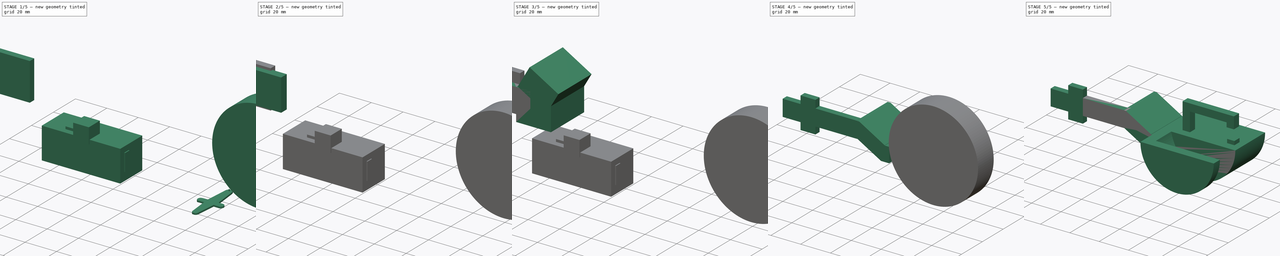
[diagram: build sequence overview — one tinted view per stage of 5, left to right]
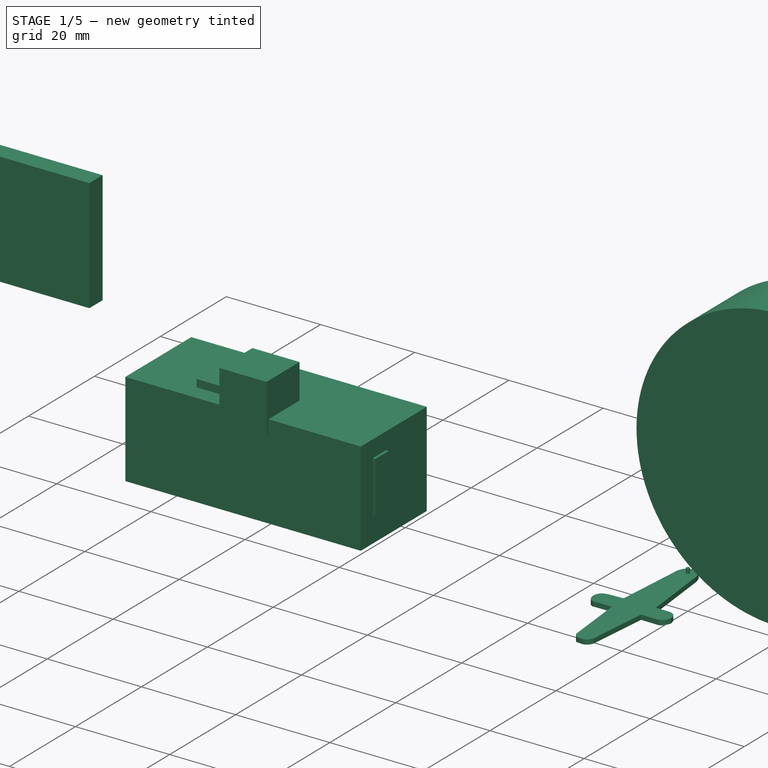
[diagram: stage 1 of 5 — iso view after this stage's code; geometry added in this stage tinted green]
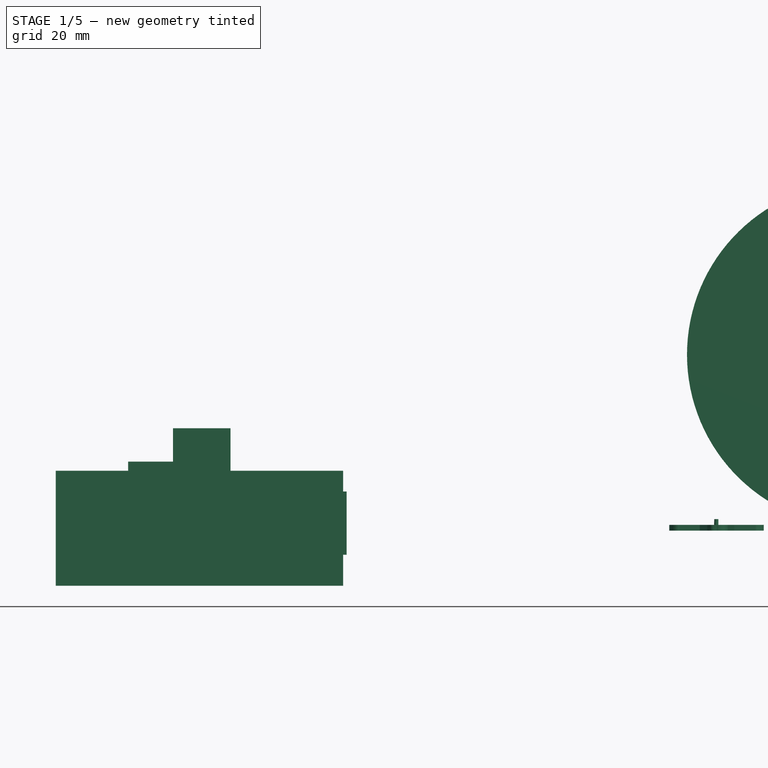
[diagram: stage 1 of 5 — front view after this stage's code; geometry added in this stage tinted green]
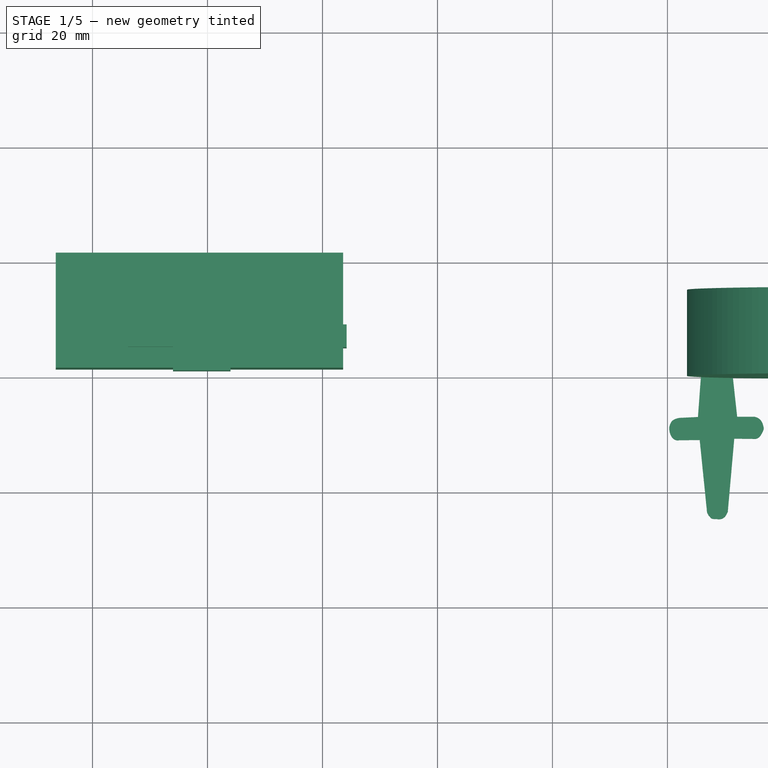
[diagram: stage 1 of 5 — top view after this stage's code; geometry added in this stage tinted green]
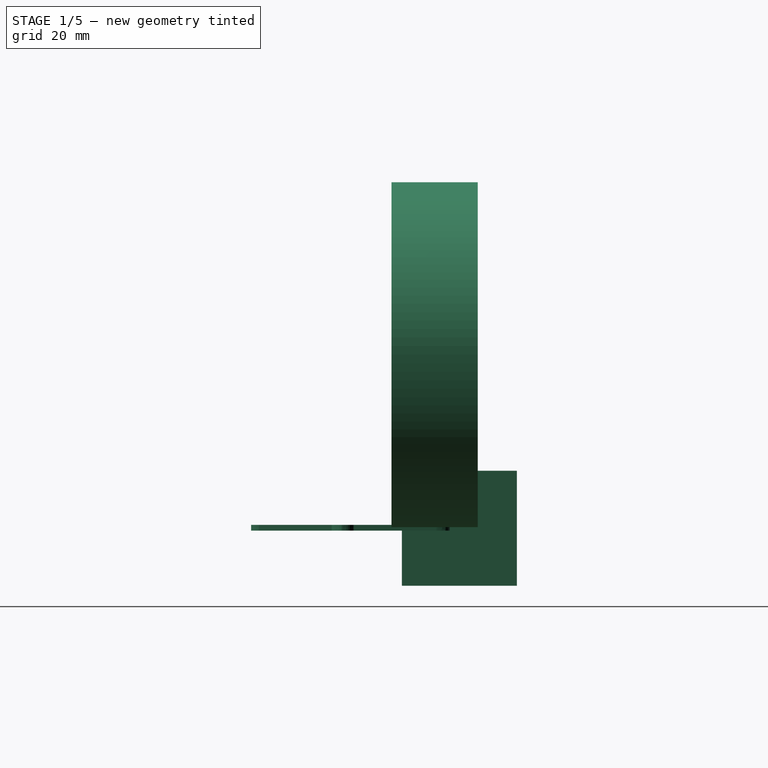
[diagram: stage 1 of 5 — right view after this stage's code; geometry added in this stage tinted green]
FCSTD DOCUMENT  (FreeCAD 0.20R29177 +426 (Git))
Label: pieza_mejorada
License: Creative Commons Attribution-ShareAlike
LicenseURL: http://creativecommons.org/licenses/by-sa/4.0/
objects: Part::Box×16, Part::Cut×14, Part::MultiFuse×6, Part::Extrusion×5, Part::Feature×3, Sketcher::SketchObject×2, Part::Fuse×2, Part::Cylinder×2
note: 50 computed .brp shape members not serialized (recipe doc carries the construction recipe); baked Part::Feature solids carry a one-line shape summary decoded from their .brp

FEATURE [Part::Feature] circle1180
  Placement = pos=(80.8508,-10.0656,0) rot=(0,0,1;0rad)
  shape: bbox 0.8152 x 0.9368 x 1.995e-06 mm, 0 faces, 0 solids (baked)
FEATURE [Part::Extrusion] Extrude026
  Base = -> circle1180
  Dir = (0,0,1)
  DirMode = 2
  FaceMakerClass = Part::FaceMakerBullseye
  LengthFwd = 2
  LengthRev = 0
  Placement = pos=(22.5,0,0) rot=(0,0,1;0rad)
  Solid = true
  Symmetric = false
FEATURE [Part::Feature] path287
  shape: bbox 16.5 x 34.62 x 2e-07 mm, 0 faces, 0 solids (baked)
FEATURE [Part::Extrusion] Extrude025
  Base = -> path287
  Dir = (0,0,1)
  DirMode = 0
  FaceMakerClass = Part::FaceMakerBullseye
  LengthFwd = 1
  LengthRev = 0
  Solid = true
  Symmetric = false
FEATURE [Part::Box] Box043  label="Cubo043"
  AttacherType = Attacher::AttachEngine3D
  Height = 24
  Length = 43
  Placement = pos=(-82,-11.5,17.5) rot=(0,0,1;0rad)
  Width = 4
FEATURE [Part::Box] Box057  label="Cubo057"
  AttacherType = Attacher::AttachEngine3D
  Height = 20
  Length = 50
  Placement = pos=(-26.4,-18.6,-9.6) rot=(0,0,1;0rad)
  Width = 20
FEATURE [Part::Box] Box058  label="Cubo058"
  AttacherType = Attacher::AttachEngine3D
  Height = 11
  Length = 50
  Placement = pos=(-25.8,-15,-4.2) rot=(0,0,1;0rad)
  Width = 4
FEATURE [Part::Box] Box059  label="Cubo059"
  AttacherType = Attacher::AttachEngine3D
  Height = 10
  Length = 10
  Placement = pos=(-6,-19.2,7.8) rot=(0,0,1;0rad)
  Width = 10
FEATURE [Part::Box] Box060  label="Cubo060"
  AttacherType = Attacher::AttachEngine3D
  Height = 21
  Length = 10
  Placement = pos=(-13.8,-15,-9) rot=(0,0,1;0rad)
  Width = 4
FEATURE [Part::MultiFuse] Fusion030
  Shapes = -> [Box060,Box058]
FEATURE [Part::Cylinder] Cylinder002  label="Cilindro002"
  Angle = 360
  AttacherType = Attacher::AttachEngine3D
  FirstAngle = 0
  Height = 15
  Placement = pos=(113.4,-5.4,30.6) rot=(1,0,0;1.5708rad)
  Radius = 30
  SecondAngle = 0
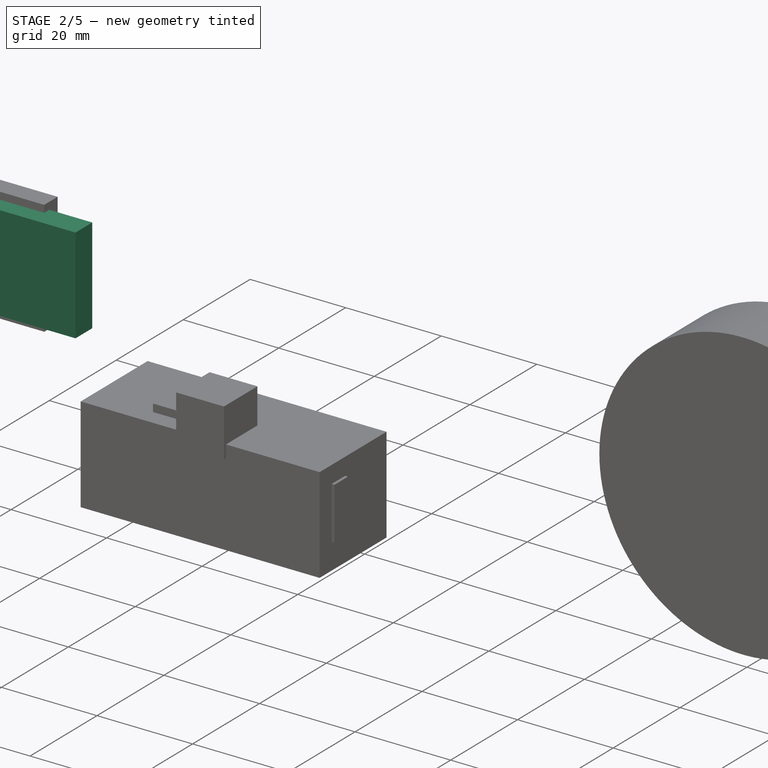
[diagram: stage 2 of 5 — iso view after this stage's code; geometry added in this stage tinted green]
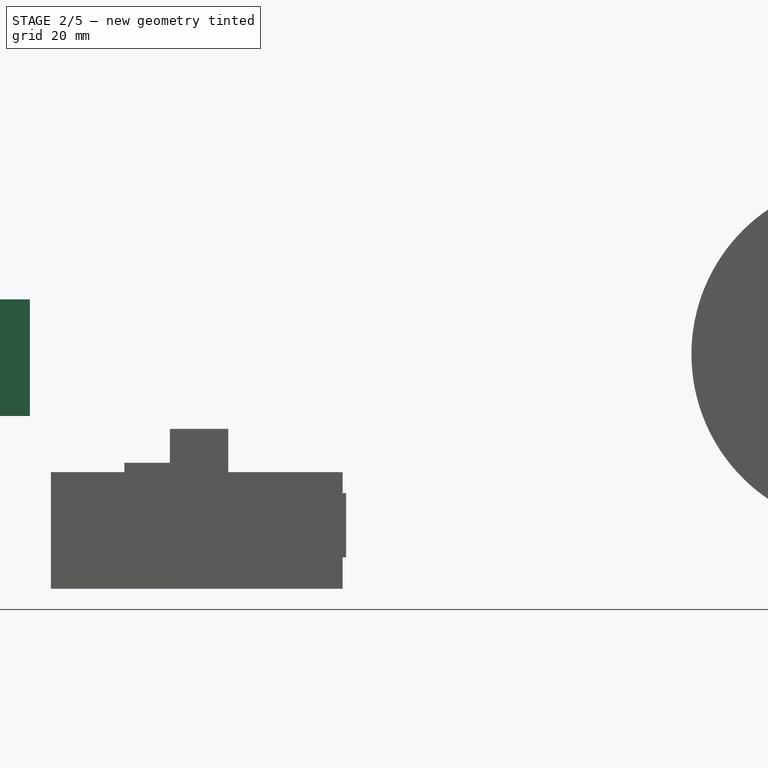
[diagram: stage 2 of 5 — front view after this stage's code; geometry added in this stage tinted green]
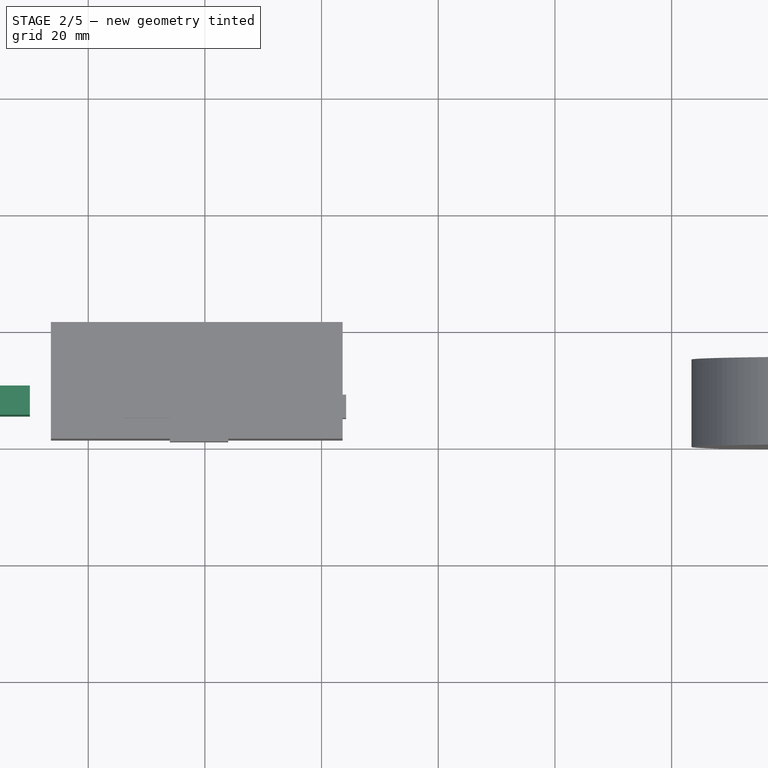
[diagram: stage 2 of 5 — top view after this stage's code; geometry added in this stage tinted green]
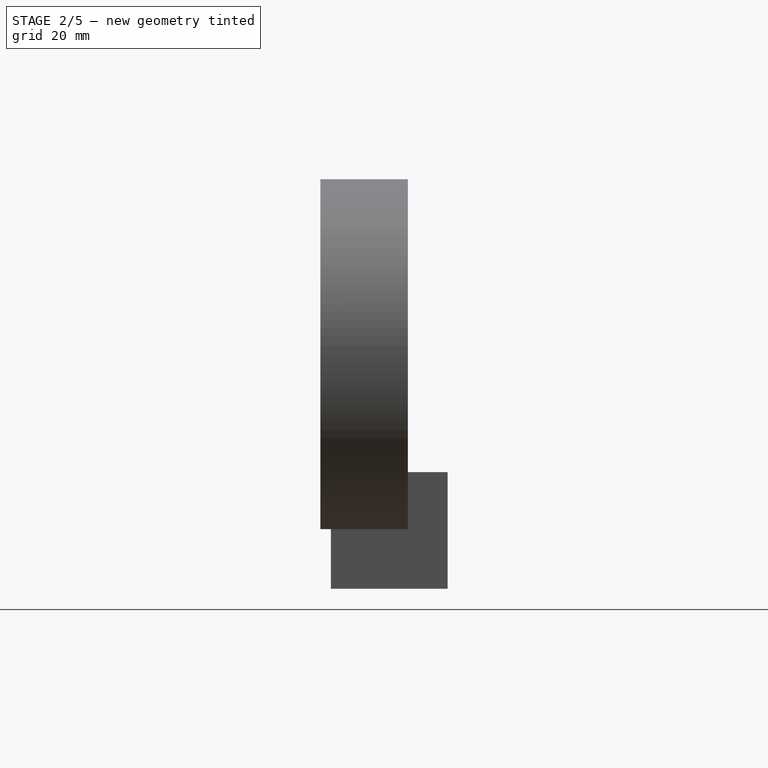
[diagram: stage 2 of 5 — right view after this stage's code; geometry added in this stage tinted green]
FEATURE [Part::Box] Box034  label="Cubo034"
  AttacherType = Attacher::AttachEngine3D
  Height = 30
  Length = 30
  Placement = pos=(-44,-10,19) rot=(0,0,1;0rad)
  Width = 30
FEATURE [Part::Box] Box035  label="Cubo035"
  AttacherType = Attacher::AttachEngine3D
  Height = 10
  Length = 15
  Placement = pos=(-82,-17,15) rot=(0,0,1;0rad)
  Width = 10
FEATURE [Sketcher::SketchObject] Sketch015
  FullyConstrained = true
  MapMode = 2
  sketch-geometry (6):
    g0: LineSegment StartX=0 StartY=0 StartZ=0 EndX=0 EndY=-5 EndZ=0
    g1: LineSegment StartX=0 StartY=-5 StartZ=0 EndX=50 EndY=-5 EndZ=0
    g2: LineSegment StartX=50 StartY=-5 StartZ=0 EndX=50 EndY=15 EndZ=0
    g3: LineSegment StartX=50 StartY=15 StartZ=0 EndX=45 EndY=15 EndZ=0
    g4: LineSegment StartX=45 StartY=15 StartZ=0 EndX=45 EndY=0 EndZ=0
    g5: LineSegment StartX=45 StartY=0 StartZ=0 EndX=0 EndY=0 EndZ=0
  constraints (17):
    c: Coincident(g-1,g0)
    c: PointOnObject(g0,g-2)
    c: Coincident(g0,g1)
    c: Horizontal(g1)
    c: Coincident(g1,g2)
    c: Vertical(g2)
    c: Coincident(g2,g3)
    c: Horizontal(g3)
    c: Coincident(g3,g4)
    c: PointOnObject(g4,g-1)
    c: Vertical(g4)
    c: Coincident(g4,g5)
    c: Coincident(g5,g0)
    c: Distance(g1) = 50
    c: Distance(g0) = 5
    c: Distance(g3) = 5
    c: Distance(g4) = 15
FEATURE [Part::Extrusion] Extrude028
  Base = -> Sketch015
  Dir = (0,0,1)
  DirMode = 2
  FaceMakerClass = Part::FaceMakerBullseye
  LengthFwd = 20
  LengthRev = 0
  Solid = true
  Symmetric = false
FEATURE [Part::Feature] circle1179
  Placement = pos=(80.8508,-13.1887,0) rot=(0,0,1;0rad)
  shape: bbox 0.8152 x 0.9368 x 1.995e-06 mm, 0 faces, 0 solids (baked)
FEATURE [Part::Extrusion] Extrude027
  Base = -> circle1179
  Dir = (0,0,1)
  DirMode = 2
  FaceMakerClass = Part::FaceMakerBullseye
  LengthFwd = 2
  LengthRev = 0
  Placement = pos=(22.5,0,0) rot=(0,0,1;0rad)
  Solid = true
  Symmetric = false
FEATURE [Part::Fuse] Fusion020
  Base = -> Extrude025
  Tool = -> Extrude026
FEATURE [Part::Fuse] Fusion021
  Base = -> Fusion020
  Placement = pos=(46,2.9e-14,98) rot=(0.57735,0.57735,-0.57735;2.0944rad)
  Tool = -> Extrude027
FEATURE [Part::Cut] Cut042  label="agarre006"
  Base = -> Extrude028
  Placement = pos=(-80,-10,20) rot=(0,0,1;0rad)
  Tool = -> Fusion021
FEATURE [Part::Cut] Cut043
  Base = -> Cut042
  Tool = -> Box034
FEATURE [Part::Cut] Cut044
  Base = -> Cut043
  Tool = -> Box035
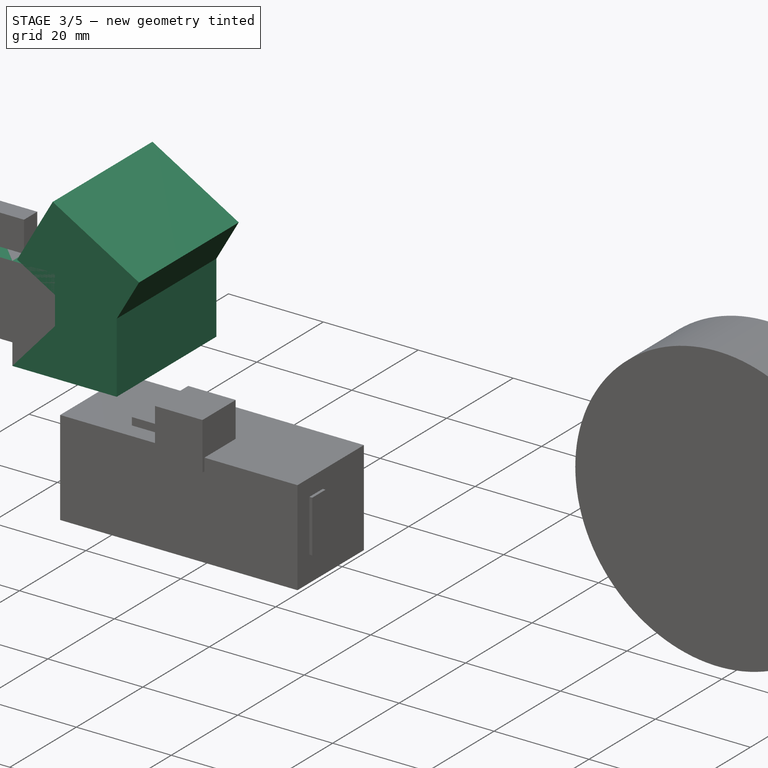
[diagram: stage 3 of 5 — iso view after this stage's code; geometry added in this stage tinted green]
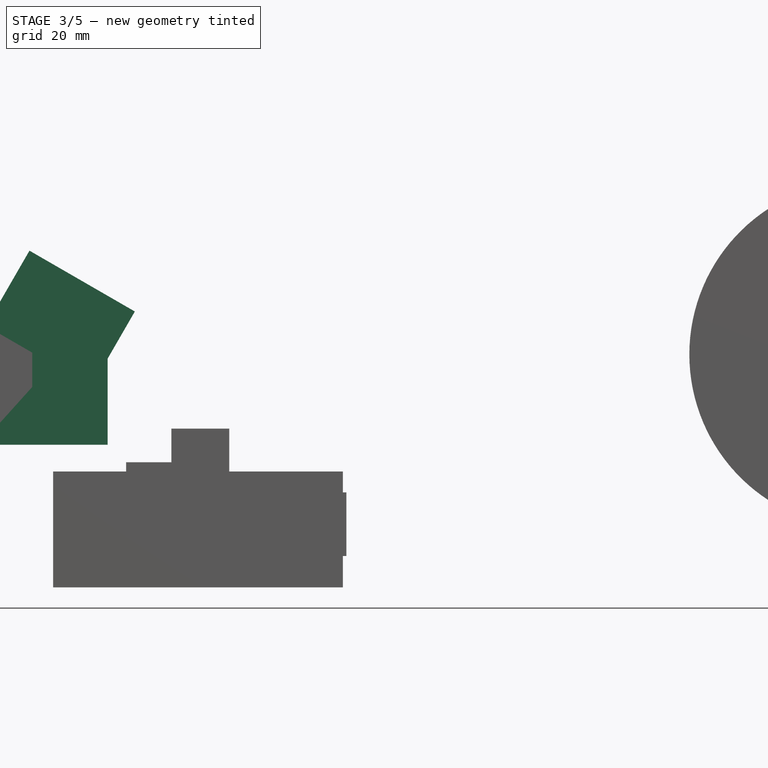
[diagram: stage 3 of 5 — front view after this stage's code; geometry added in this stage tinted green]
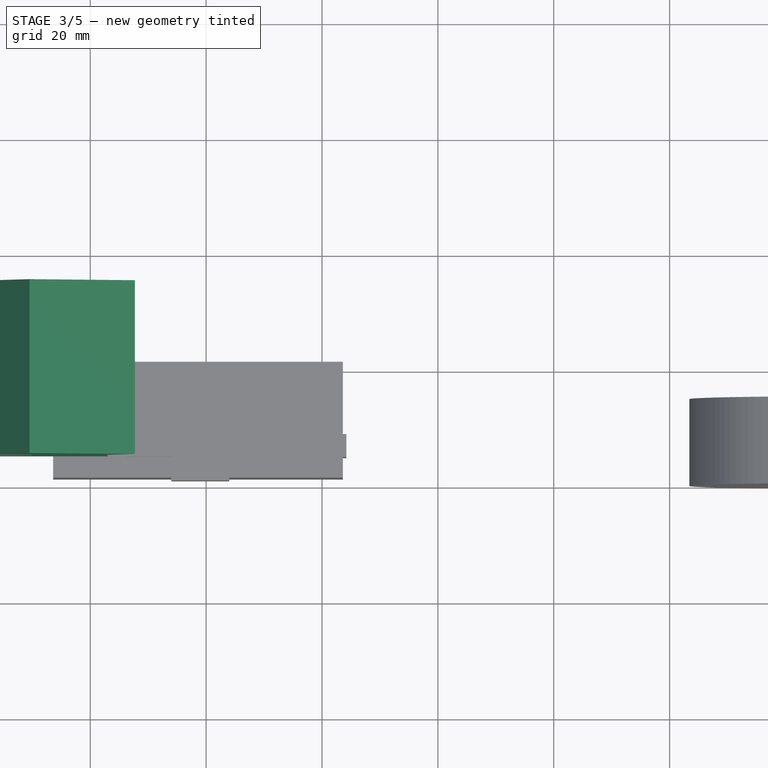
[diagram: stage 3 of 5 — top view after this stage's code; geometry added in this stage tinted green]
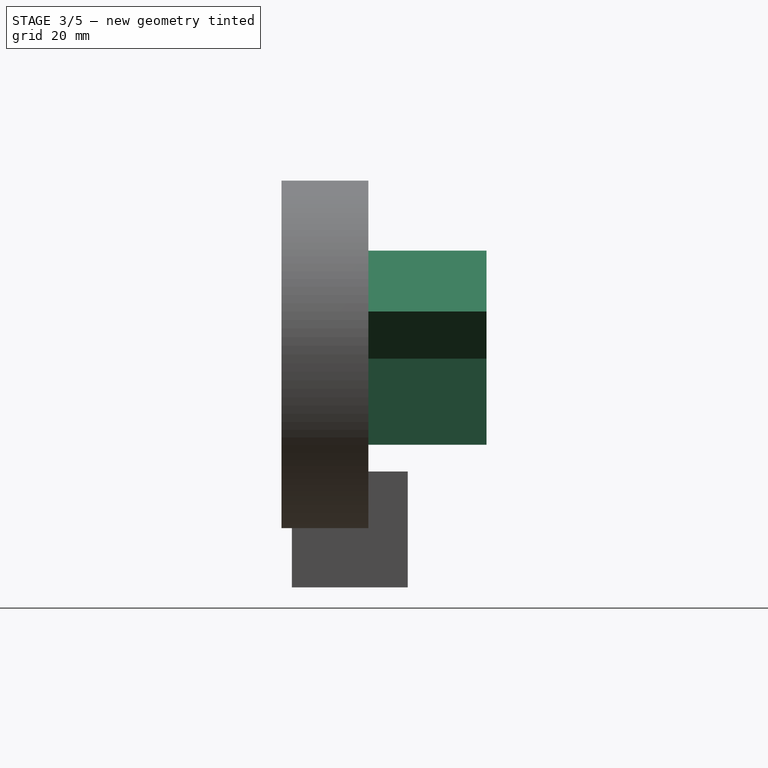
[diagram: stage 3 of 5 — right view after this stage's code; geometry added in this stage tinted green]
FEATURE [Part::Box] Box036  label="Cubo036"
  AttacherType = Attacher::AttachEngine3D
  Height = 10
  Length = 15
  Placement = pos=(-82,-17,35) rot=(0,0,1;0rad)
  Width = 10
FEATURE [Part::Box] Box037  label="Cubo037"
  AttacherType = Attacher::AttachEngine3D
  Height = 10
  Length = 30
  Placement = pos=(-59,-18,15) rot=(0,0,1;0rad)
  Width = 10
FEATURE [Part::Box] Box038  label="Cubo038"
  AttacherType = Attacher::AttachEngine3D
  Height = 10
  Length = 30
  Placement = pos=(-59,-18,35) rot=(0,0,1;0rad)
  Width = 10
FEATURE [Part::Box] Box039  label="Cubo039"
  AttacherType = Attacher::AttachEngine3D
  Height = 20
  Length = 22
  Placement = pos=(-39,-15,15) rot=(0,0,1;0rad)
  Width = 30
FEATURE [Part::Box] Box040  label="Cubo040"
  AttacherType = Attacher::AttachEngine3D
  Height = 15
  Length = 21
  Placement = pos=(-37.99,-15,35.52) rot=(0,1,0;0.523599rad)
  Width = 30
FEATURE [Part::Cut] Cut045
  Base = -> Cut044
  Tool = -> Box036
FEATURE [Part::Cut] Cut046
  Base = -> Cut045
  Tool = -> Box037
FEATURE [Part::Cut] Cut047
  Base = -> Cut046
  Tool = -> Box038
FEATURE [Part::MultiFuse] Fusion022
  Shapes = -> [Cut047,Box039]
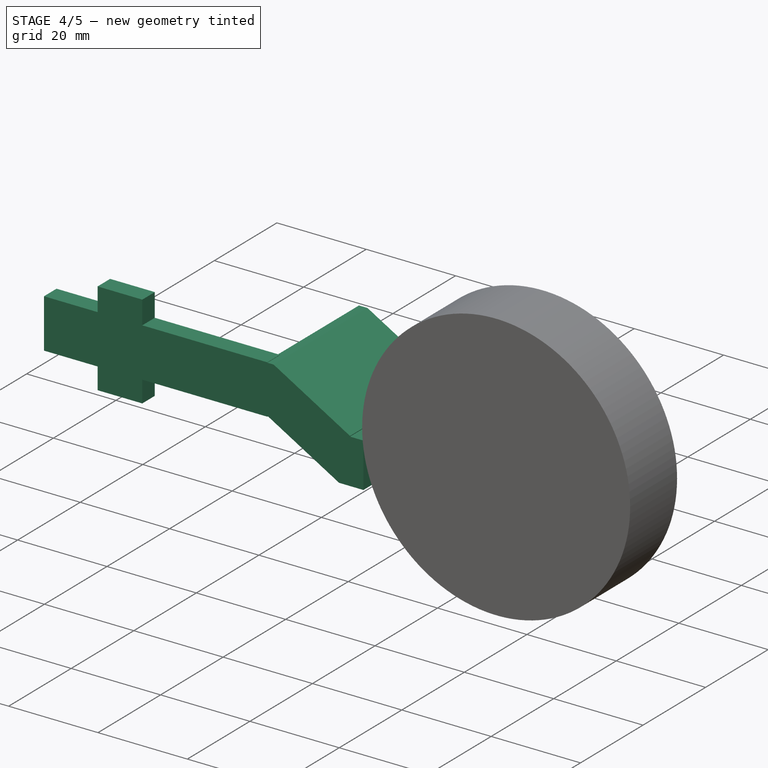
[diagram: stage 4 of 5 — iso view after this stage's code; geometry added in this stage tinted green]
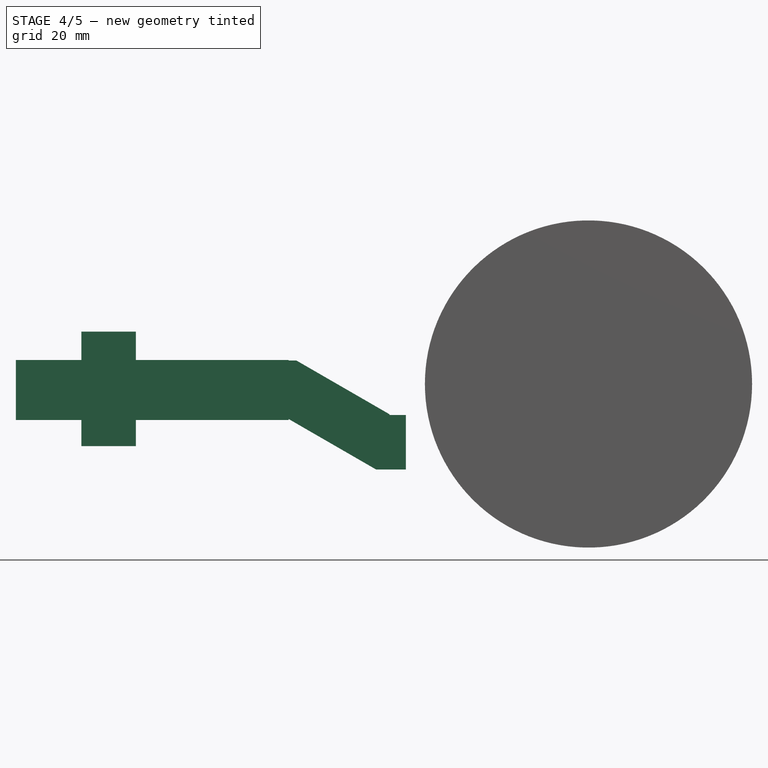
[diagram: stage 4 of 5 — front view after this stage's code; geometry added in this stage tinted green]
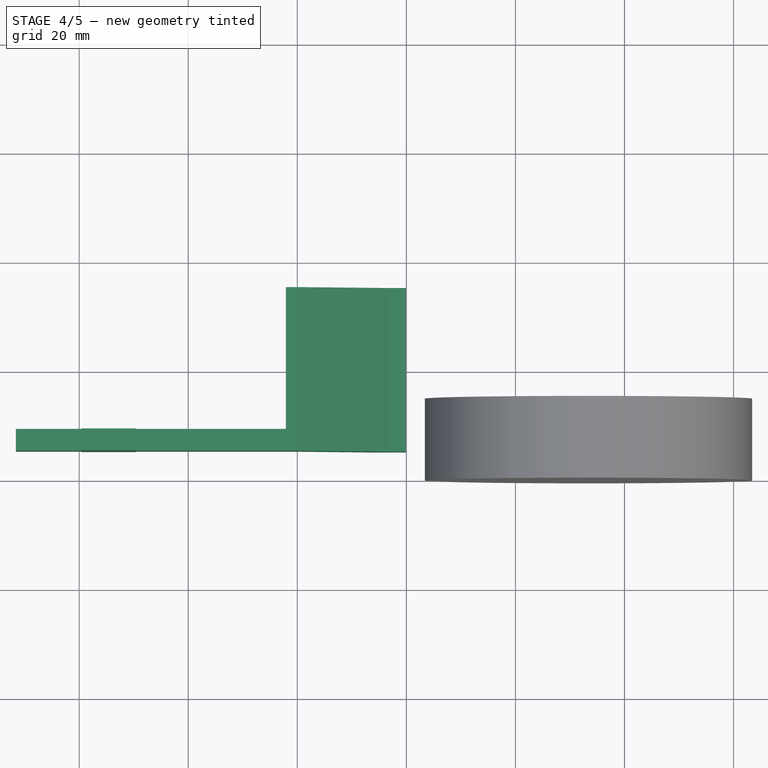
[diagram: stage 4 of 5 — top view after this stage's code; geometry added in this stage tinted green]
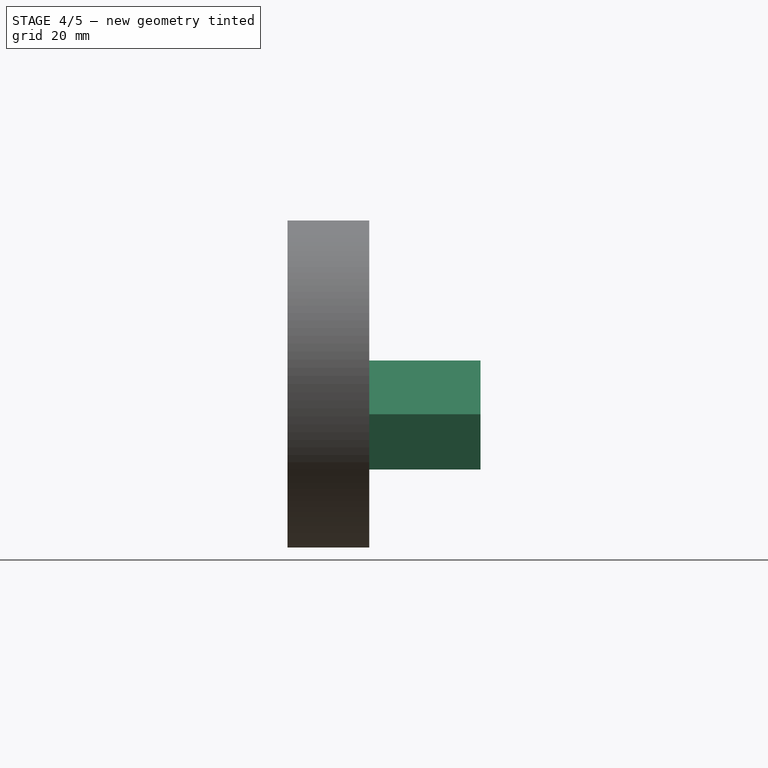
[diagram: stage 4 of 5 — right view after this stage's code; geometry added in this stage tinted green]
FEATURE [Part::Box] Box041  label="Cubo041"
  AttacherType = Attacher::AttachEngine3D
  Height = 15
  Length = 21
  Placement = pos=(-46.5929,-15,11.6194) rot=(0,1,0;0.523599rad)
  Width = 30
FEATURE [Part::Box] Box042  label="Cubo042"
  AttacherType = Attacher::AttachEngine3D
  Height = 10
  Length = 10
  Placement = pos=(-20,-17,25) rot=(0,0,1;0rad)
  Width = 40
FEATURE [Part::Cut] Cut048
  Base = -> Fusion022
  Tool = -> Box040
FEATURE [Part::Cut] Cut049
  Base = -> Cut048
  Tool = -> Box041
FEATURE [Part::Cut] Cut050  label="agarre007"
  Base = -> Cut049
  Tool = -> Box042
FEATURE [Part::Cut] Cut051
  Base = -> Cut050
  Placement = pos=(62.7039,0,-28.2798) rot=(0,0,1;0rad)
  Tool = -> Box043
FEATURE [Part::Cut] Cut063
  Base = -> Cut051
  Tool = -> Box057
FEATURE [Part::Cut] Cut064
  Base = -> Cut063
  Tool = -> Box059
FEATURE [Part::MultiFuse] Fusion031
  Placement = pos=(34.2,0,28.2) rot=(0,0,1;0rad)
  Shapes = -> [Fusion030,Cut064]
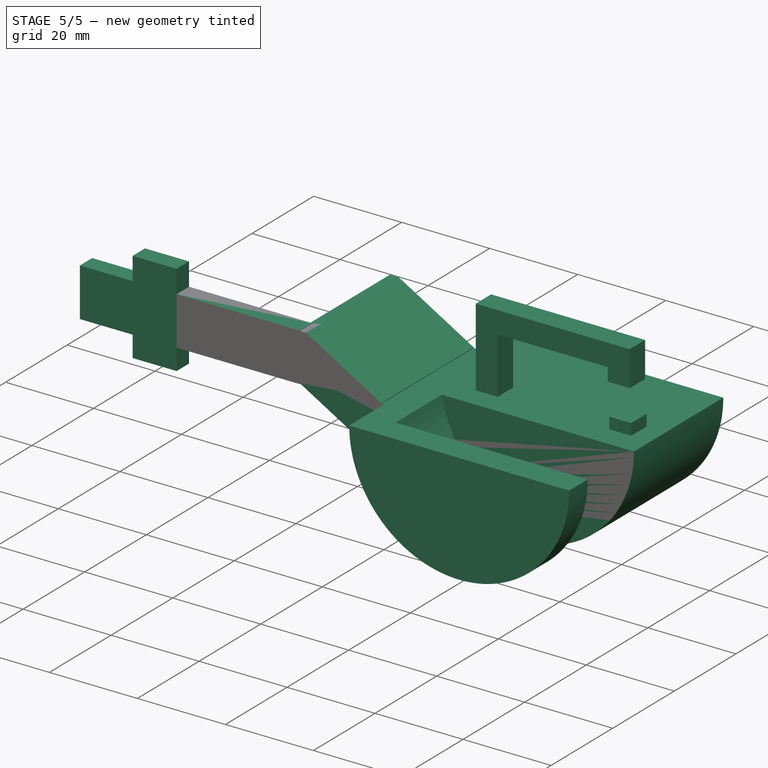
[diagram: stage 5 of 5 — iso view after this stage's code; geometry added in this stage tinted green]
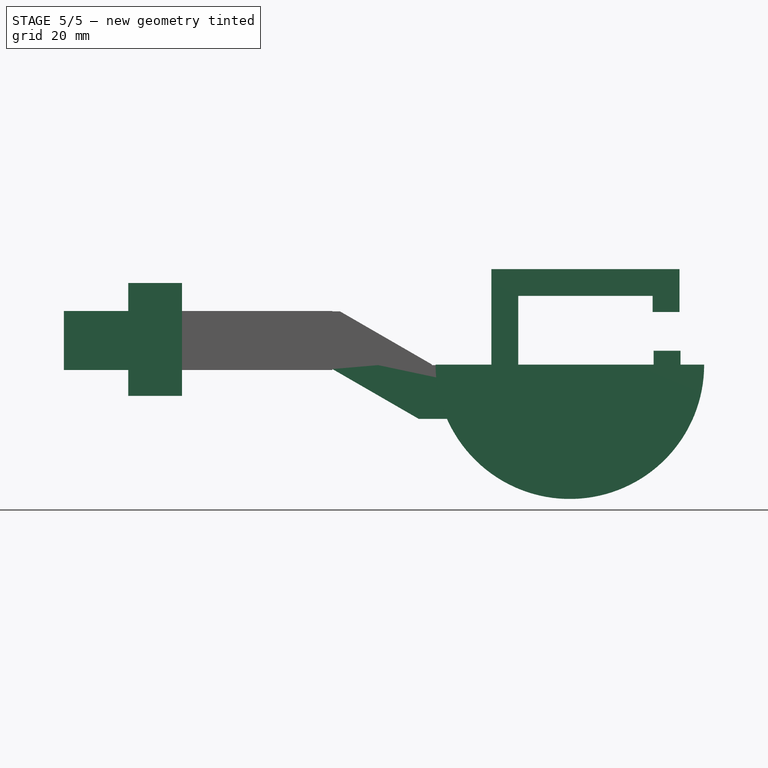
[diagram: stage 5 of 5 — front view after this stage's code; geometry added in this stage tinted green]
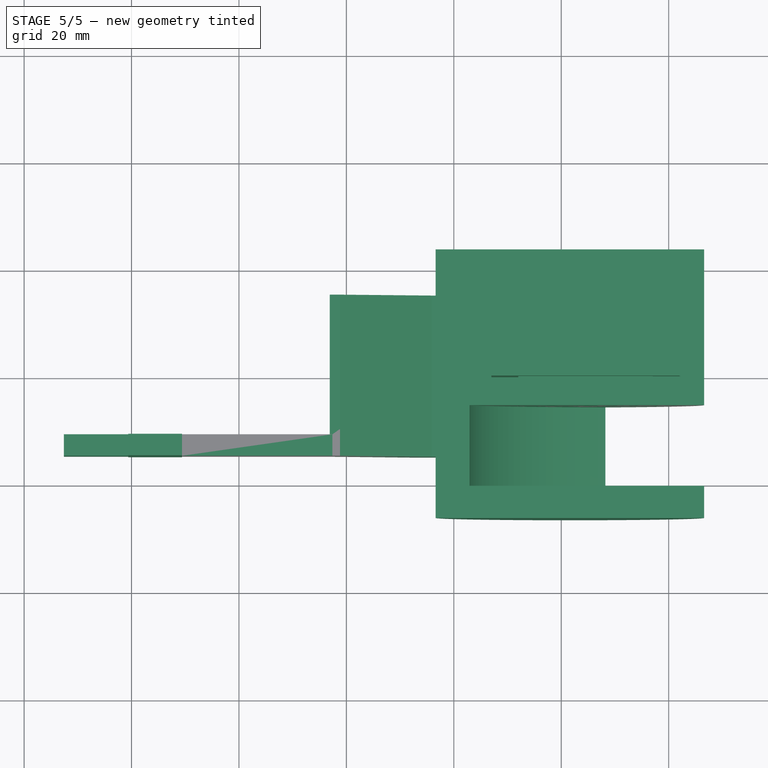
[diagram: stage 5 of 5 — top view after this stage's code; geometry added in this stage tinted green]
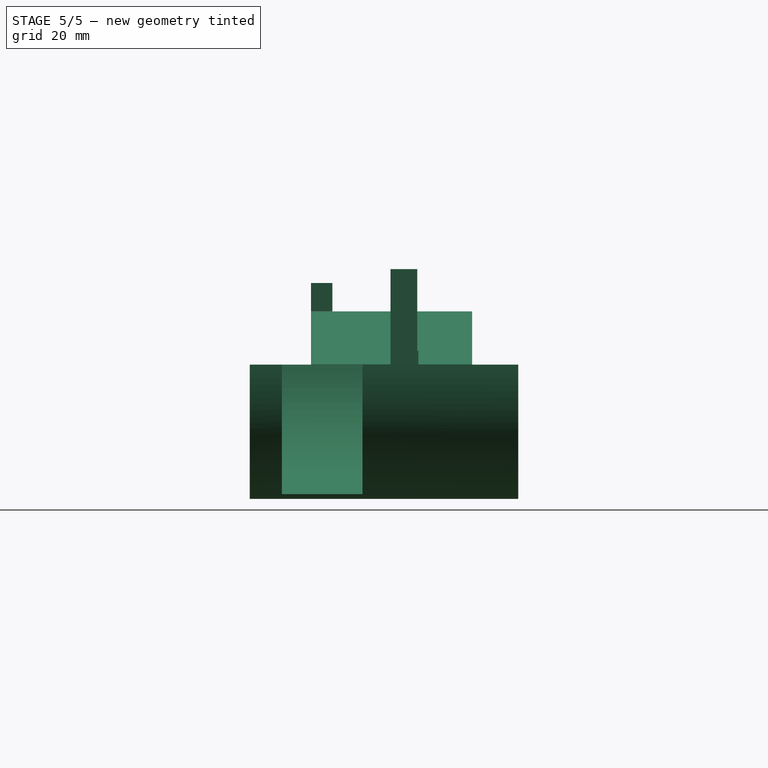
[diagram: stage 5 of 5 — right view after this stage's code; geometry added in this stage tinted green]
FEATURE [Part::Cylinder] Cylinder  label="Cilindro"
  Angle = 360
  AttacherType = Attacher::AttachEngine3D
  FirstAngle = 0
  Height = 50
  Placement = pos=(34.2,0,25) rot=(0,1,0;4.71239rad)
  Radius = 25
  SecondAngle = 0
FEATURE [Part::Box] Box  label="Cubo"
  AttacherType = Attacher::AttachEngine3D
  Height = 70
  Length = 70
  Placement = pos=(-25.8,-35,25) rot=(0,0,1;0rad)
  Width = 70
FEATURE [Part::Cut] Cut  label="nueva_base"
  Base = -> Cylinder
  Placement = pos=(102.6,7.8,0) rot=(0,0,1;4.71239rad)
  Tool = -> Box
FEATURE [Sketcher::SketchObject] Sketch016
  FullyConstrained = false
  Placement = pos=(0,0,0) rot=(1,0,0;1.5708rad)
  sketch-geometry (8):
    g0: LineSegment StartX=0 StartY=0 StartZ=0 EndX=25 EndY=0 EndZ=0
    g1: LineSegment StartX=0 StartY=0 StartZ=0 EndX=0 EndY=-13 EndZ=0
    g2: LineSegment StartX=25 StartY=0 StartZ=0 EndX=25 EndY=-3 EndZ=0
    g3: LineSegment StartX=0 StartY=-13 StartZ=0 EndX=-5 EndY=-13 EndZ=0
    g4: LineSegment StartX=25 StartY=-3 StartZ=0 EndX=30 EndY=-3 EndZ=0
    g5: LineSegment StartX=-5 StartY=-13 StartZ=0 EndX=-5 EndY=5 EndZ=0
    g6: LineSegment StartX=30 StartY=-3 StartZ=0 EndX=30 EndY=5 EndZ=0
    g7: LineSegment StartX=-5 StartY=5 StartZ=0 EndX=30 EndY=5 EndZ=0
  constraints (20):
    c: Coincident(g0,g-1)
    c: Horizontal(g0)
    c: Coincident(g1,g0)
    c: Vertical(g1)
    c: Coincident(g2,g0)
    c: Vertical(g2)
    c: DistanceY(g2,g2) = 3
    c: Coincident(g3,g1)
    c: Horizontal(g3)
    c: Coincident(g4,g2)
    c: Horizontal(g4)
    c: Coincident(g5,g3)
    c: Coincident(g6,g4)
    c: Vertical(g6)
    c: Vertical(g5)
    c: DistanceY(g5,g5) = 18
    c: DistanceY(g6,g6) = 8
    c: Coincident(g7,g5)
    c: Coincident(g7,g6)
    c: Horizontal(g7)
FEATURE [Part::Extrusion] Extrude
  Base = -> Sketch016
  Dir = (0,-1,2e-16)
  DirMode = 2
  FaceMakerClass = Part::FaceMakerBullseye
  LengthFwd = 5
  LengthRev = 0
  Placement = pos=(93,4.8,37.8) rot=(0,0,1;0rad)
  Solid = true
  Symmetric = false
FEATURE [Part::MultiFuse] Fusion
  Shapes = -> [Extrude,Cut]
FEATURE [Part::Box] Box044  label="Cubo044"
  AttacherType = Attacher::AttachEngine3D
  Height = 3
  Length = 5
  Placement = pos=(118.2,0,24.6) rot=(0,0,1;0rad)
  Width = 5
FEATURE [Part::MultiFuse] Fusion023
  Shapes = -> [Box044,Fusion]
FEATURE [Part::MultiFuse] Fusion032  label="aaaa"
  Shapes = -> [Fusion031,Fusion023]
FEATURE [Part::Cut] Cut078  label="pieza_mejorada"
  Base = -> Fusion032
  Placement = pos=(-21,0,0) rot=(0,0,1;0rad)
  Tool = -> Cylinder002
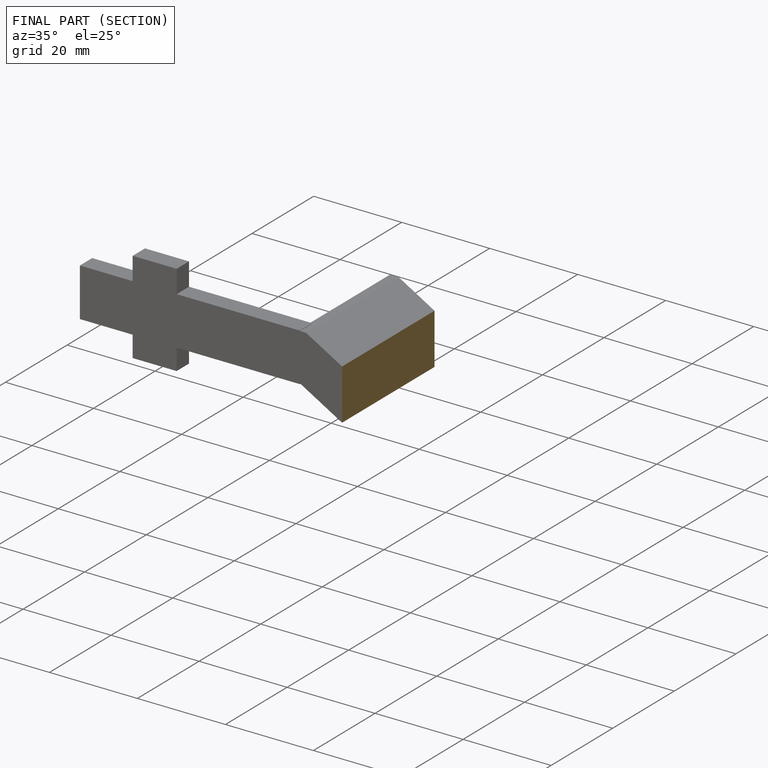
[diagram: finished part — half-section view (interior)]
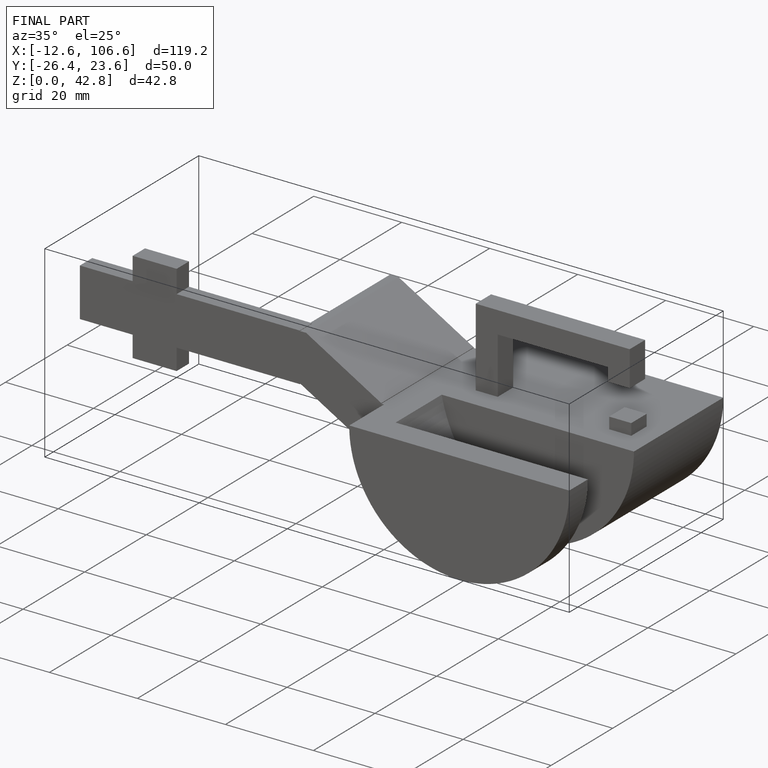
[diagram: finished part — iso view with bounding-box wireframe]
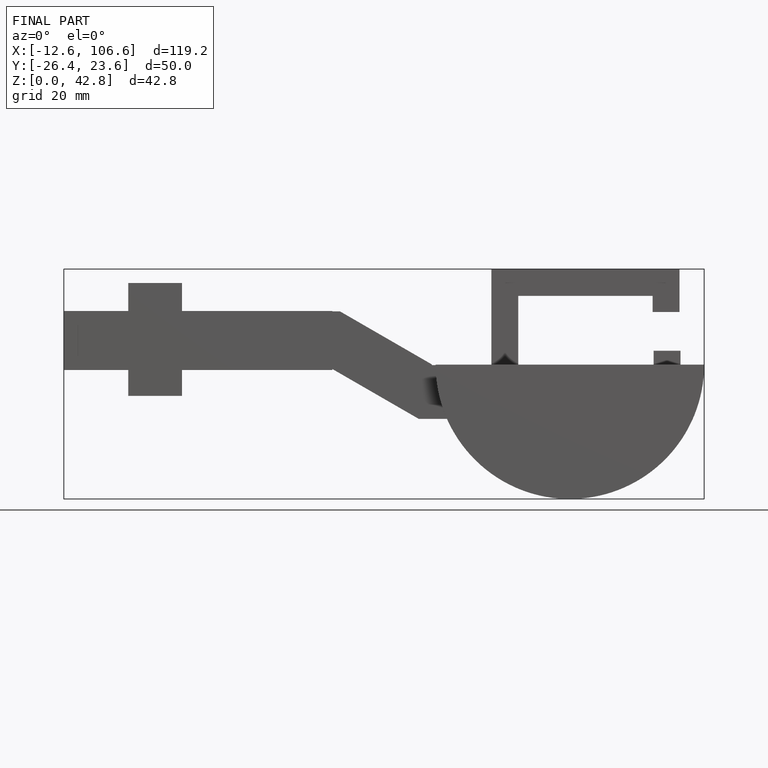
[diagram: finished part — front view with bounding-box wireframe]
